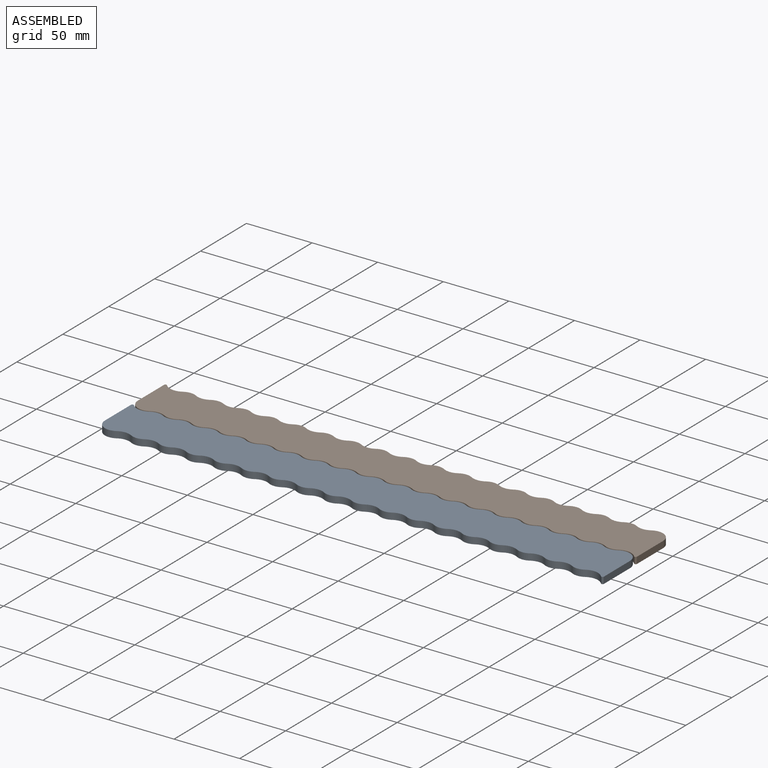
[diagram: assembled view]
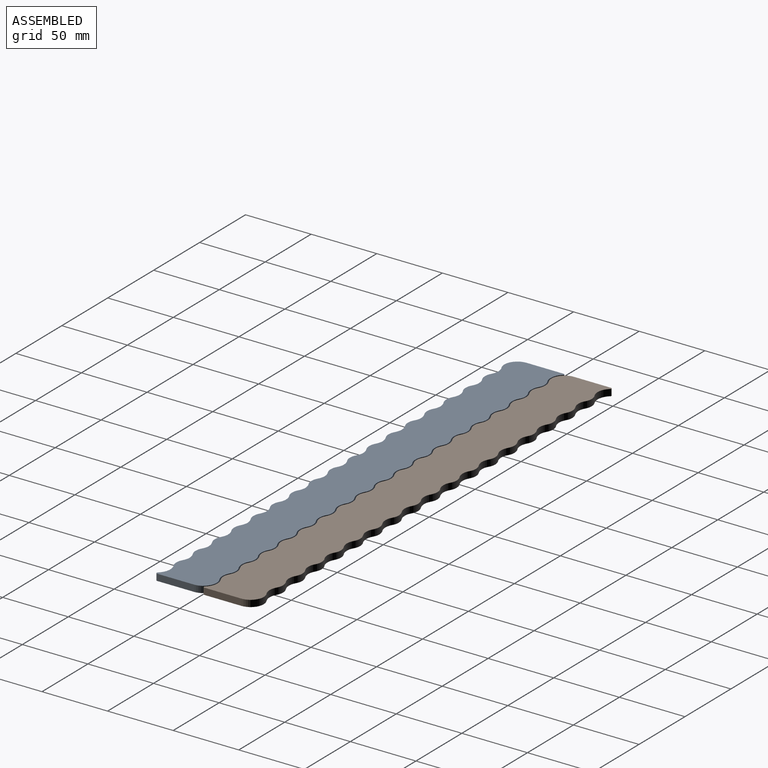
[diagram: assembled view, second angle]
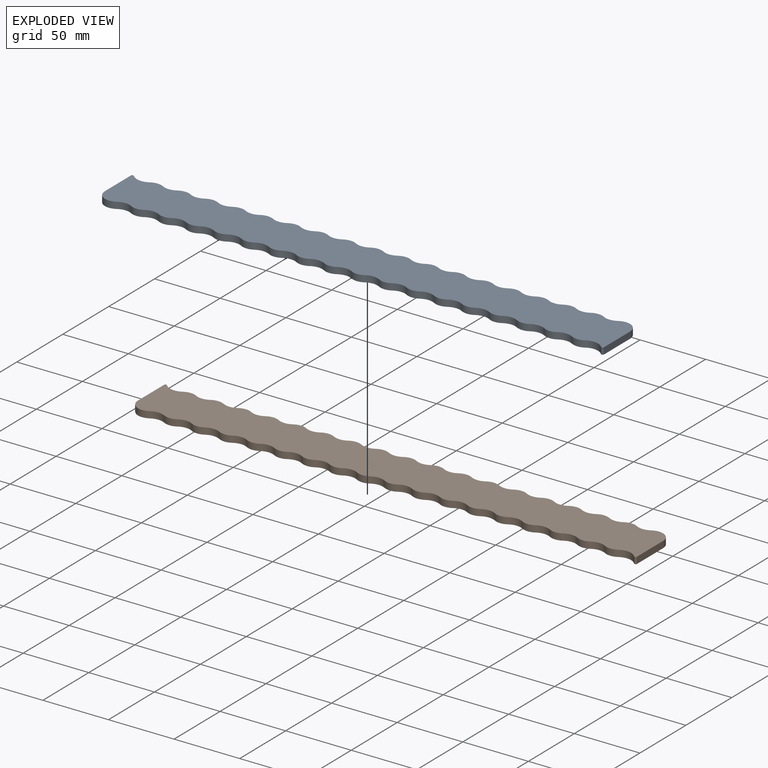
[diagram: exploded view]
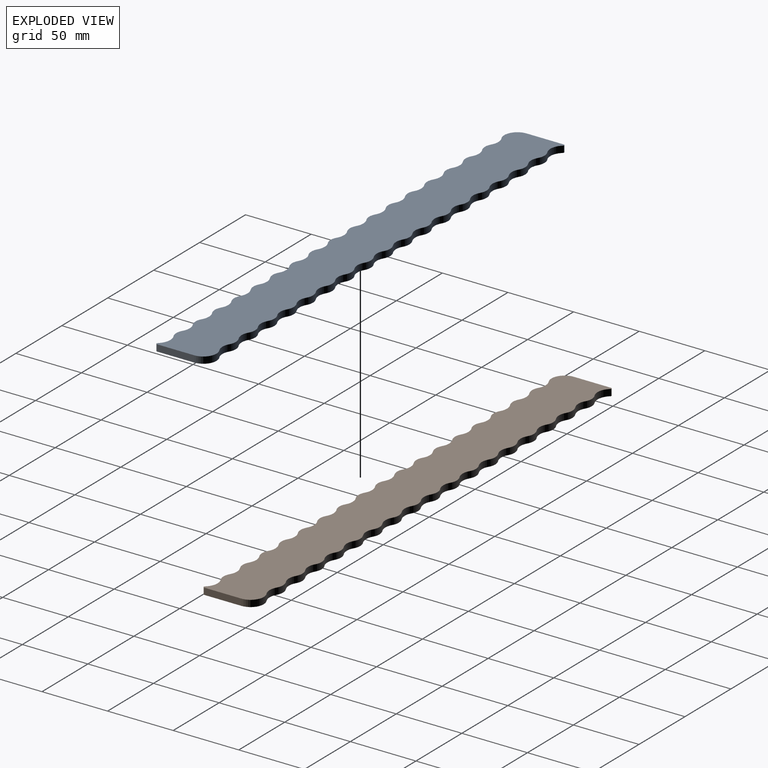
[diagram: exploded view, second angle]
ASSEMBLY  parts=2 mates=2
PART A: 78 faces, bbox 387.5x40.6x5 mm
  f0: cylinder r=10mm len=15.04mm, axis (0,0,-1), area 104.9mm2, adj f1,f73,f74,f75
  f1: cylinder r=10.84mm len=10.92mm, axis (0,0,-1), area 57.2mm2, adj f0,f2,f74,f75
  f2: cylinder r=10mm len=10.08mm, axis (0,0,-1), area 52.8mm2, adj f1,f3,f74,f75
  f3: cylinder r=10.84mm len=10.92mm, axis (0,0,-1), area 57.2mm2, adj f2,f4,f74,f75
  f4: cylinder r=10mm len=10.08mm, axis (0,0,-1), area 52.8mm2, adj f3,f5,f74,f75
  f5: cylinder r=10.84mm len=10.92mm, axis (0,0,-1), area 57.2mm2, adj f4,f6,f74,f75
  f6: cylinder r=10mm len=10.08mm, axis (0,0,-1), area 52.8mm2, adj f5,f7,f74,f75
  f7: cylinder r=10.84mm len=10.92mm, axis (0,0,-1), area 57.2mm2, adj f6,f8,f74,f75
  f8: cylinder r=10mm len=10.08mm, axis (0,0,-1), area 52.8mm2, adj f7,f9,f74,f75
  f9: cylinder r=10.84mm len=10.92mm, axis (0,0,-1), area 57.2mm2, adj f8,f10,f74,f75
  f10: cylinder r=10mm len=10.08mm, axis (0,0,-1), area 52.8mm2, adj f9,f11,f74,f75
  f11: cylinder r=10.84mm len=10.92mm, axis (0,0,-1), area 57.2mm2, adj f10,f12,f74,f75
  f12: cylinder r=10mm len=10.08mm, axis (0,0,-1), area 52.8mm2, adj f11,f13,f74,f75
  f13: cylinder r=10.84mm len=10.92mm, axis (0,0,-1), area 57.2mm2, adj f12,f14,f74,f75
  f14: cylinder r=10mm len=10.08mm, axis (0,0,-1), area 52.8mm2, adj f13,f15,f74,f75
  f15: cylinder r=10.84mm len=10.92mm, axis (0,0,-1), area 57.2mm2, adj f14,f16,f74,f75
  f16: cylinder r=10mm len=10.08mm, axis (0,0,-1), area 52.8mm2, adj f15,f17,f74,f75
  f17: cylinder r=10.84mm len=10.92mm, axis (0,0,-1), area 57.2mm2, adj f16,f18,f74,f75
  f18: cylinder r=10mm len=10.08mm, axis (0,0,-1), area 52.8mm2, adj f17,f19,f74,f75
  f19: cylinder r=10.84mm len=10.92mm, axis (0,0,-1), area 57.2mm2, adj f18,f20,f74,f75
  f20: cylinder r=10mm len=10.08mm, axis (0,0,-1), area 52.8mm2, adj f19,f21,f74,f75
  f21: cylinder r=10.84mm len=10.92mm, axis (0,0,-1), area 57.2mm2, adj f20,f22,f74,f75
  f22: cylinder r=10mm len=10.08mm, axis (0,0,-1), area 52.8mm2, adj f21,f23,f74,f75
  f23: cylinder r=10.84mm len=10.92mm, axis (0,0,-1), area 57.2mm2, adj f22,f24,f74,f75
  f24: cylinder r=10mm len=10.08mm, axis (0,0,-1), area 52.8mm2, adj f23,f25,f74,f75
  f25: cylinder r=10.84mm len=10.92mm, axis (0,0,-1), area 57.2mm2, adj f24,f26,f74,f75
  f26: cylinder r=10mm len=10.08mm, axis (0,0,-1), area 52.8mm2, adj f25,f27,f74,f75
  f27: cylinder r=10.84mm len=10.92mm, axis (0,0,-1), area 57.2mm2, adj f26,f28,f74,f75
  f28: cylinder r=10mm len=10.08mm, axis (0,0,-1), area 52.8mm2, adj f27,f29,f74,f75
  f29: cylinder r=10.84mm len=10.92mm, axis (0,0,-1), area 57.2mm2, adj f28,f30,f74,f75
  f30: cylinder r=10mm len=10.08mm, axis (0,0,-1), area 52.8mm2, adj f29,f31,f74,f75
  f31: cylinder r=10.84mm len=10.92mm, axis (0,0,-1), area 57.2mm2, adj f30,f32,f74,f75
  f32: cylinder r=10mm len=10.08mm, axis (0,0,-1), area 52.8mm2, adj f31,f33,f74,f75
  f33: cylinder r=10.84mm len=10.92mm, axis (0,0,-1), area 57.2mm2, adj f32,f34,f74,f75
  f34: cylinder r=10mm len=10.08mm, axis (0,0,-1), area 52.8mm2, adj f33,f35,f74,f75
  f35: cylinder r=10.84mm len=13.7mm, axis (0,0,-1), area 75.4mm2, adj f34,f74,f75,f76
  f36: plane 28.31x5mm, normal (1,0,0), area 141.5mm2, adj f37,f74,f75,f76
  f37: cylinder r=10mm len=15.04mm, axis (0,0,-1), area 104.9mm2, adj f36,f38,f74,f75
  f38: cylinder r=10.84mm len=10.92mm, axis (0,0,-1), area 57.2mm2, adj f37,f39,f74,f75
  f39: cylinder r=10mm len=10.08mm, axis (0,0,-1), area 52.8mm2, adj f38,f40,f74,f75
  f40: cylinder r=10.84mm len=10.92mm, axis (0,0,-1), area 57.2mm2, adj f39,f41,f74,f75
  f41: cylinder r=10mm len=10.08mm, axis (0,0,-1), area 52.8mm2, adj f40,f42,f74,f75
  f42: cylinder r=10.84mm len=10.92mm, axis (0,0,-1), area 57.2mm2, adj f41,f43,f74,f75
  f43: cylinder r=10mm len=10.08mm, axis (0,0,-1), area 52.8mm2, adj f42,f44,f74,f75
  f44: cylinder r=10.84mm len=10.92mm, axis (0,0,-1), area 57.2mm2, adj f43,f45,f74,f75
  f45: cylinder r=10mm len=10.08mm, axis (0,0,-1), area 52.8mm2, adj f44,f46,f74,f75
  f46: cylinder r=10.84mm len=10.92mm, axis (0,0,-1), area 57.2mm2, adj f45,f47,f74,f75
  f47: cylinder r=10mm len=10.08mm, axis (0,0,-1), area 52.8mm2, adj f46,f48,f74,f75
  f48: cylinder r=10.84mm len=10.92mm, axis (0,0,-1), area 57.2mm2, adj f47,f49,f74,f75
  f49: cylinder r=10mm len=10.08mm, axis (0,0,-1), area 52.8mm2, adj f48,f50,f74,f75
  f50: cylinder r=10.84mm len=10.92mm, axis (0,0,-1), area 57.2mm2, adj f49,f51,f74,f75
  f51: cylinder r=10mm len=10.08mm, axis (0,0,-1), area 52.8mm2, adj f50,f52,f74,f75
  f52: cylinder r=10.84mm len=10.92mm, axis (0,0,-1), area 57.2mm2, adj f51,f53,f74,f75
  f53: cylinder r=10mm len=10.08mm, axis (0,0,-1), area 52.8mm2, adj f52,f54,f74,f75
  f54: cylinder r=10.84mm len=10.92mm, axis (0,0,-1), area 57.2mm2, adj f53,f55,f74,f75
  f55: cylinder r=10mm len=10.08mm, axis (0,0,-1), area 52.8mm2, adj f54,f56,f74,f75
  f56: cylinder r=10.84mm len=10.92mm, axis (0,0,-1), area 57.2mm2, adj f55,f57,f74,f75
  f57: cylinder r=10mm len=10.08mm, axis (0,0,-1), area 52.8mm2, adj f56,f58,f74,f75
  f58: cylinder r=10.84mm len=10.92mm, axis (0,0,-1), area 57.2mm2, adj f57,f59,f74,f75
  f59: cylinder r=10mm len=10.08mm, axis (0,0,-1), area 52.8mm2, adj f58,f60,f74,f75
  f60: cylinder r=10.84mm len=10.92mm, axis (0,0,-1), area 57.2mm2, adj f59,f61,f74,f75
  f61: cylinder r=10mm len=10.08mm, axis (0,0,-1), area 52.8mm2, adj f60,f62,f74,f75
  f62: cylinder r=10.84mm len=10.92mm, axis (0,0,-1), area 57.2mm2, adj f61,f63,f74,f75
  f63: cylinder r=10mm len=10.08mm, axis (0,0,-1), area 52.8mm2, adj f62,f64,f74,f75
  f64: cylinder r=10.84mm len=10.92mm, axis (0,0,-1), area 57.2mm2, adj f63,f65,f74,f75
  f65: cylinder r=10mm len=10.08mm, axis (0,0,-1), area 52.8mm2, adj f64,f66,f74,f75
  f66: cylinder r=10.84mm len=10.92mm, axis (0,0,-1), area 57.2mm2, adj f65,f67,f74,f75
  f67: cylinder r=10mm len=10.08mm, axis (0,0,-1), area 52.8mm2, adj f66,f68,f74,f75
  f68: cylinder r=10.84mm len=10.92mm, axis (0,0,-1), area 57.2mm2, adj f67,f69,f74,f75
  f69: cylinder r=10mm len=10.08mm, axis (0,0,-1), area 52.8mm2, adj f68,f70,f74,f75
  f70: cylinder r=10.84mm len=10.92mm, axis (0,0,-1), area 57.2mm2, adj f69,f71,f74,f75
  f71: cylinder r=10mm len=10.08mm, axis (0,0,-1), area 52.8mm2, adj f70,f72,f74,f75
  f72: cylinder r=10.84mm len=13.7mm, axis (0,0,-1), area 75.4mm2, adj f71,f74,f75,f77
  f73: plane 28.31x5mm, normal (-1,0,0), area 141.5mm2, adj f0,f74,f75,f77
  f74: plane 387.5x40.62mm, normal (0,0,1), area 13600.4mm2, adj f0,f1,f2,f3,f4,f5,f6,f7
  f75: plane 387.5x40.62mm, normal (0,0,-1), area 13600.4mm2, adj f0,f1,f2,f3,f4,f5,f6,f7
  f76: cylinder r=1mm len=5mm, axis (0,0,-1), area 12.2mm2, adj f35,f36,f74,f75
  f77: cylinder r=1mm len=5mm, axis (0,0,-1), area 12.2mm2, adj f72,f73,f74,f75
PART B: same geometry as A
PLACE A t=(-20.58,-43.05,-53.73)mm
PLACE B t=(-20.58,-7.05,-53.73)mm
MATE cylindrical A.f72 <-> B.f0  axis (0,0,1) through (-107.59,-7.05,-48.73)mm
MATE planar A.f74 <-> B.f71  axis (0,0,1) through (76.16,-34.05,-48.73)mm
